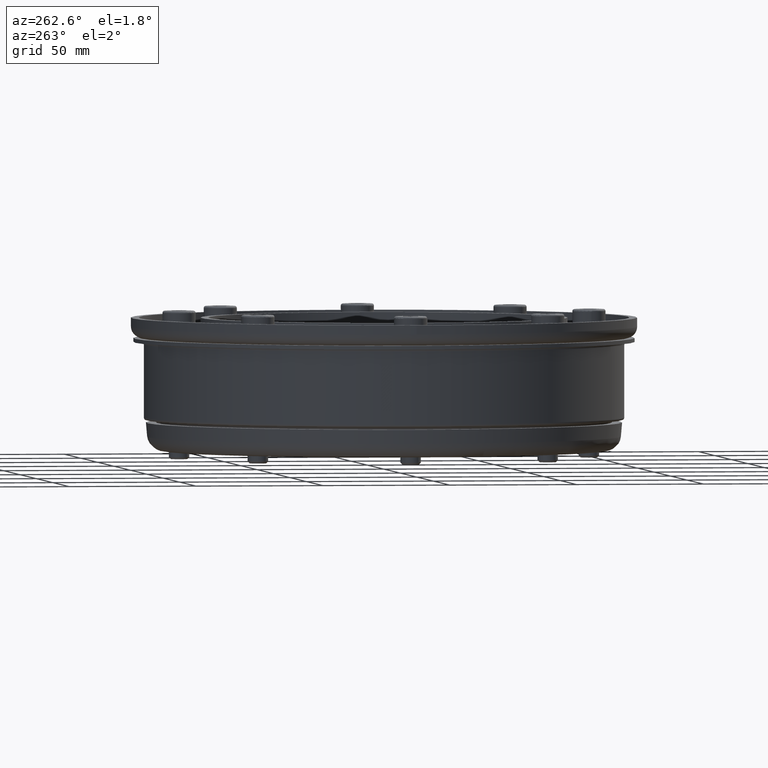
[diagram: clean part render]
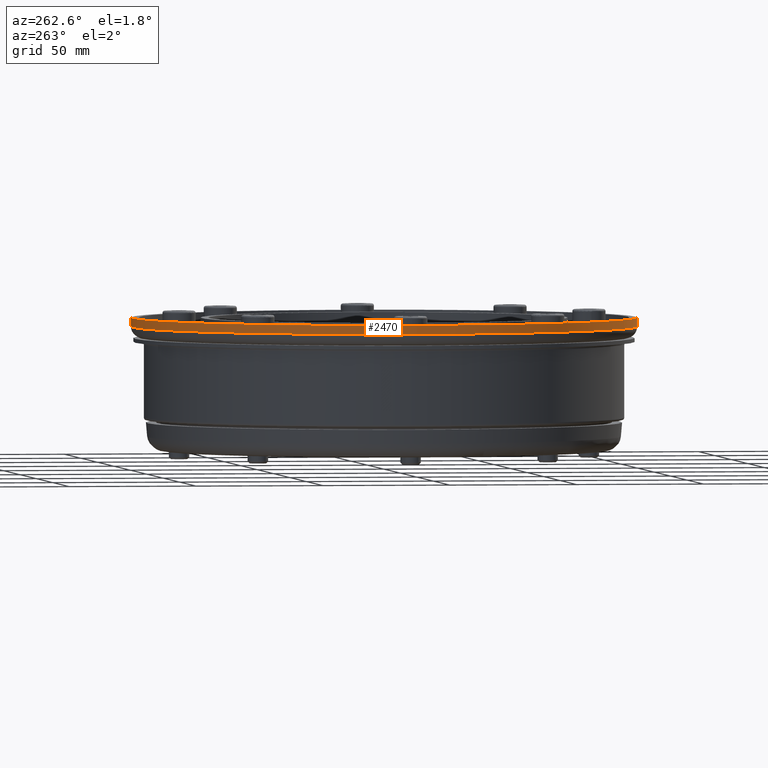
[diagram: same view with one face highlighted and labeled with its STEP entity id]
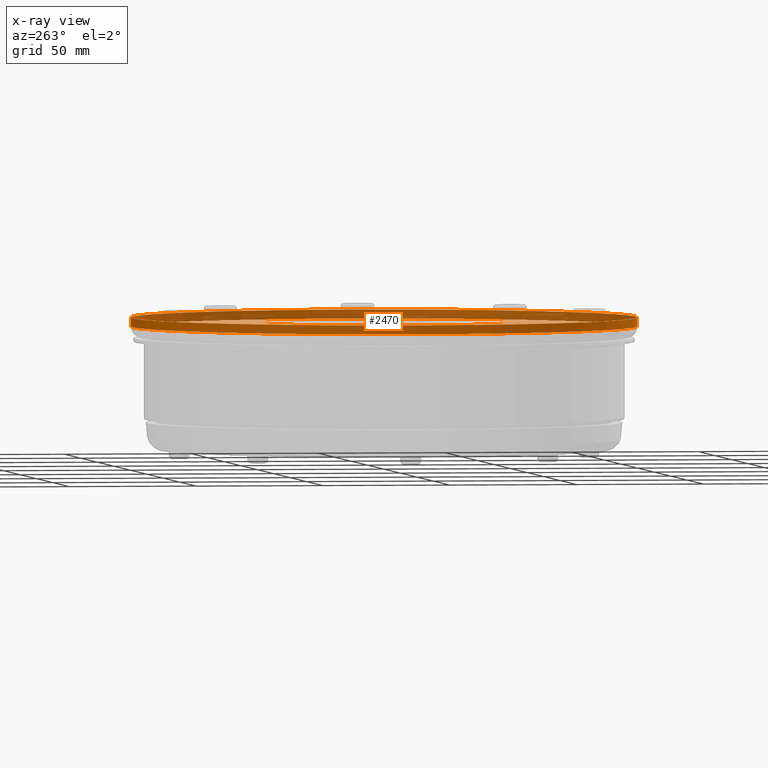
[diagram: x-ray of the same camera — body ghosted, the highlighted face saturated]
A machine part, auxiliary view. The second image highlights one B-rep face of the part: STEP entity #2470.
The next image is the same camera in x-ray: the body ghosted, the highlighted face saturated — about 36% of this face is hidden behind the body in this view.
In plain terms, the highlighted cylindrical surface (bore or boss wall) has radius 99 mm, axis along (-0, 0, 1).
Its self-contained STEP definition (entity closure, byte-faithful):
#245=CYLINDRICAL_SURFACE('',#2898,99.);
#350=FACE_OUTER_BOUND('',#541,.T.);
#541=EDGE_LOOP('',(#2098,#2099,#2100,#2101,#2102,#2103));
#671=LINE('',#4415,#770);
#770=VECTOR('',#3614,97.8);
#976=CIRCLE('',#2874,99.);
#980=CIRCLE('',#2878,99.);
#999=CIRCLE('',#2899,99.);
#1000=CIRCLE('',#2900,99.);
#1217=VERTEX_POINT('',#4364);
#1218=VERTEX_POINT('',#4365);
#1239=VERTEX_POINT('',#4411);
#1240=VERTEX_POINT('',#4412);
#1525=EDGE_CURVE('',#1217,#1218,#976,.T.);
#1529=EDGE_CURVE('',#1218,#1217,#980,.T.);
#1548=EDGE_CURVE('',#1239,#1240,#999,.T.);
#1549=EDGE_CURVE('',#1240,#1239,#1000,.T.);
#1550=EDGE_CURVE('',#1240,#1217,#671,.T.);
#2098=ORIENTED_EDGE('',*,*,#1548,.F.);
#2099=ORIENTED_EDGE('',*,*,#1549,.F.);
#2100=ORIENTED_EDGE('',*,*,#1550,.T.);
#2101=ORIENTED_EDGE('',*,*,#1529,.F.);
#2102=ORIENTED_EDGE('',*,*,#1525,.F.);
#2103=ORIENTED_EDGE('',*,*,#1550,.F.);
#2470=ADVANCED_FACE('',(#350),#245,.T.);
#2874=AXIS2_PLACEMENT_3D('',#4366,#3560,#3561);
#2878=AXIS2_PLACEMENT_3D('',#4372,#3568,#3569);
#2898=AXIS2_PLACEMENT_3D('',#4410,#3608,#3609);
#2899=AXIS2_PLACEMENT_3D('',#4413,#3610,#3611);
#2900=AXIS2_PLACEMENT_3D('',#4414,#3612,#3613);
#3560=DIRECTION('center_axis',(0.,-1.,0.));
#3561=DIRECTION('ref_axis',(-1.,0.,0.));
#3568=DIRECTION('center_axis',(0.,-1.,0.));
#3569=DIRECTION('ref_axis',(-1.,0.,0.));
#3608=DIRECTION('center_axis',(0.,1.,0.));
#3609=DIRECTION('ref_axis',(-1.,0.,0.));
#3610=DIRECTION('center_axis',(0.,1.,0.));
#3611=DIRECTION('ref_axis',(0.,0.,1.));
#3612=DIRECTION('center_axis',(0.,1.,0.));
#3613=DIRECTION('ref_axis',(0.,0.,1.));
#3614=DIRECTION('',(0.,-1.,0.));
#4364=CARTESIAN_POINT('',(99.,-1.,1.21240033115588E-14));
#4365=CARTESIAN_POINT('',(-1.21240033115588E-14,-1.,-99.));
#4366=CARTESIAN_POINT('Origin',(0.,-1.,0.));
#4372=CARTESIAN_POINT('Origin',(0.,-1.,0.));
#4410=CARTESIAN_POINT('Origin',(0.,-4.,0.));
#4411=CARTESIAN_POINT('',(0.,2.49999999999999,99.));
#4412=CARTESIAN_POINT('',(99.,2.49999999999999,-1.21240033115588E-14));
#4413=CARTESIAN_POINT('Origin',(0.,2.49999999999999,0.));
#4414=CARTESIAN_POINT('Origin',(0.,2.49999999999999,0.));
#4415=CARTESIAN_POINT('',(99.,-4.,-1.21240033115588E-14));